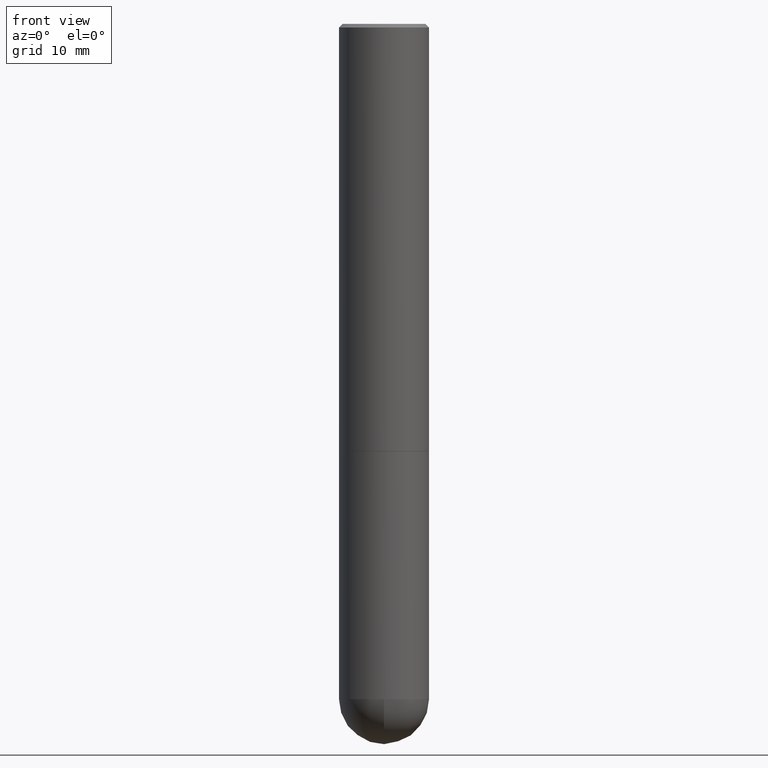
[diagram: clean part render]
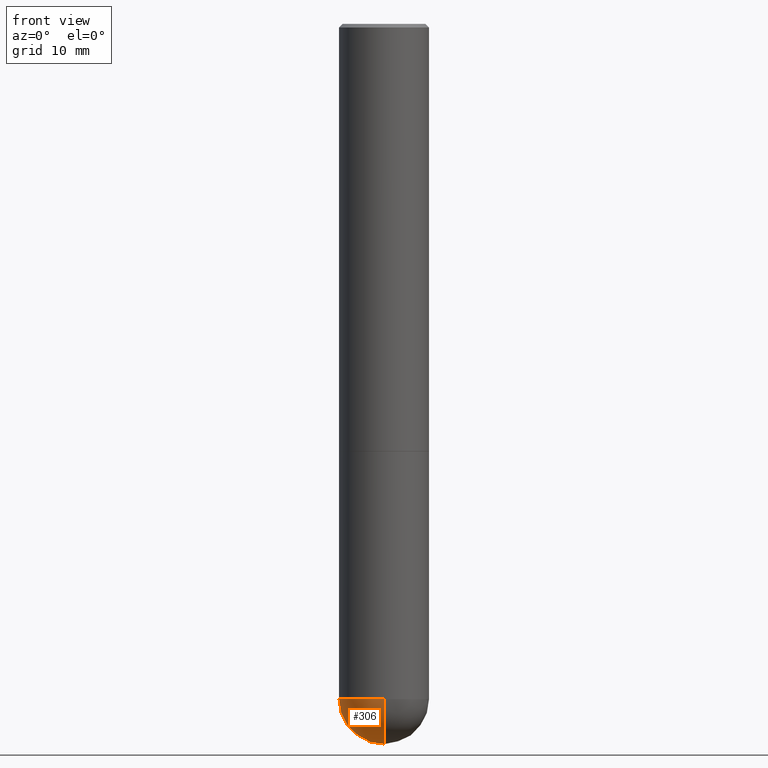
[diagram: same view with one face highlighted and labeled with its STEP entity id]
A machine part, front view. The second image highlights one B-rep face of the part: STEP entity #306.
In plain terms, the highlighted spherical surface has radius 6.35 mm.
Its self-contained STEP definition (entity closure, byte-faithful):
#10 = SPHERICAL_SURFACE ( 'NONE', #214, 0.2500000000000001110 ) ;
#13 = CIRCLE ( 'NONE', #245, 0.2500000000000001110 ) ;
#20 = CIRCLE ( 'NONE', #273, 0.2500000000000001110 ) ;
#36 = FACE_OUTER_BOUND ( 'NONE', #81, .T. ) ;
#48 = ORIENTED_EDGE ( 'NONE', *, *, #265, .F. ) ;
#49 = VERTEX_POINT ( 'NONE', #105 ) ;
#66 = DIRECTION ( 'NONE',  ( -2.445468806185136597E-29, 3.491481338843145583E-15, 1.000000000000000000 ) ) ;
#74 = DIRECTION ( 'NONE',  ( 1.000000000000000000, -6.982962677686262766E-15, 0.000000000000000000 ) ) ;
#75 = DIRECTION ( 'NONE',  ( -7.105427357601001859E-15, -1.000000000000000000, 0.000000000000000000 ) ) ;
#80 = ORIENTED_EDGE ( 'NONE', *, *, #191, .F. ) ;
#81 = EDGE_LOOP ( 'NONE', ( #48, #274, #80, #338 ) ) ;
#82 = VERTEX_POINT ( 'NONE', #410 ) ;
#85 = CARTESIAN_POINT ( 'NONE',  ( 8.839388245280375991E-29, -1.356723738880184771E-14, -3.750000000000000000 ) ) ;
#105 = CARTESIAN_POINT ( 'NONE',  ( 1.745740669421657002E-15, 0.2499999999999867606, -3.750000000000001332 ) ) ;
#110 = CARTESIAN_POINT ( 'NONE',  ( 9.461445025441403338E-29, -1.442479963852329389E-14, -4.000000000000000888 ) ) ;
#112 = CARTESIAN_POINT ( 'NONE',  ( -0.2500000000000000000, -8.916304760806885668E-15, -3.750000000000000000 ) ) ;
#132 = DIRECTION ( 'NONE',  ( -2.445468806185136597E-29, 3.491481338843145583E-15, 1.000000000000000000 ) ) ;
#136 = DIRECTION ( 'NONE',  ( 6.982962677686265922E-15, 1.000000000000000000, -4.370956789862818783E-15 ) ) ;
#139 = DIRECTION ( 'NONE',  ( 1.000000000000000000, -6.982962677686262766E-15, 0.000000000000000000 ) ) ;
#169 = AXIS2_PLACEMENT_3D ( 'NONE', #395, #66, #74 ) ;
#170 = CARTESIAN_POINT ( 'NONE',  ( 9.170508023194262238E-29, -1.309305502066179741E-14, -3.750000000000000000 ) ) ;
#177 = CIRCLE ( 'NONE', #169, 0.2500000000000000000 ) ;
#191 = EDGE_CURVE ( 'NONE', #217, #82, #298, .T. ) ;
#199 = DIRECTION ( 'NONE',  ( -1.000000000000000000, 6.982962677686265922E-15, -4.883557194083113462E-29 ) ) ;
#214 = AXIS2_PLACEMENT_3D ( 'NONE', #355, #199, #136 ) ;
#217 = VERTEX_POINT ( 'NONE', #112 ) ;
#232 = DIRECTION ( 'NONE',  ( 6.982962677686266711E-15, 1.000000000000000000, 0.000000000000000000 ) ) ;
#234 = DIRECTION ( 'NONE',  ( -1.000000000000000000, 7.105427357601001070E-15, -4.926315508542082329E-29 ) ) ;
#245 = AXIS2_PLACEMENT_3D ( 'NONE', #85, #234, #75 ) ;
#265 = EDGE_CURVE ( 'NONE', #341, #49, #20, .T. ) ;
#273 = AXIS2_PLACEMENT_3D ( 'NONE', #351, #288, #232 ) ;
#274 = ORIENTED_EDGE ( 'NONE', *, *, #374, .T. ) ;
#288 = DIRECTION ( 'NONE',  ( 1.000000000000000000, -6.982962677686265922E-15, 4.883557194083112340E-29 ) ) ;
#293 = EDGE_CURVE ( 'NONE', #49, #217, #177, .T. ) ;
#298 = CIRCLE ( 'NONE', #336, 0.2500000000000000000 ) ;
#306 = ADVANCED_FACE ( 'NONE', ( #36 ), #10, .T. ) ;
#336 = AXIS2_PLACEMENT_3D ( 'NONE', #170, #132, #139 ) ;
#338 = ORIENTED_EDGE ( 'NONE', *, *, #293, .F. ) ;
#341 = VERTEX_POINT ( 'NONE', #110 ) ;
#351 = CARTESIAN_POINT ( 'NONE',  ( 8.839388245280375991E-29, -1.356723738880184771E-14, -3.750000000000000000 ) ) ;
#355 = CARTESIAN_POINT ( 'NONE',  ( 8.839388245280375991E-29, -1.356723738880184771E-14, -3.750000000000000000 ) ) ;
#374 = EDGE_CURVE ( 'NONE', #341, #82, #13, .T. ) ;
#395 = CARTESIAN_POINT ( 'NONE',  ( 9.170508023194262238E-29, -1.309305502066179741E-14, -3.750000000000000000 ) ) ;
#410 = CARTESIAN_POINT ( 'NONE',  ( -1.776356839400160732E-15, -0.2500000000000133782, -3.749999999999999112 ) ) ;